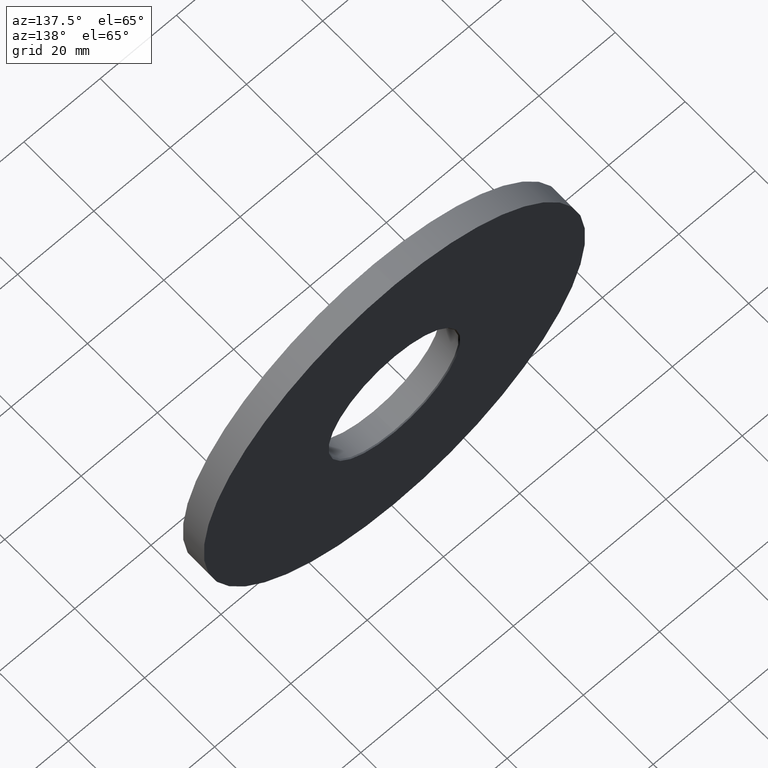
[diagram: clean part render]
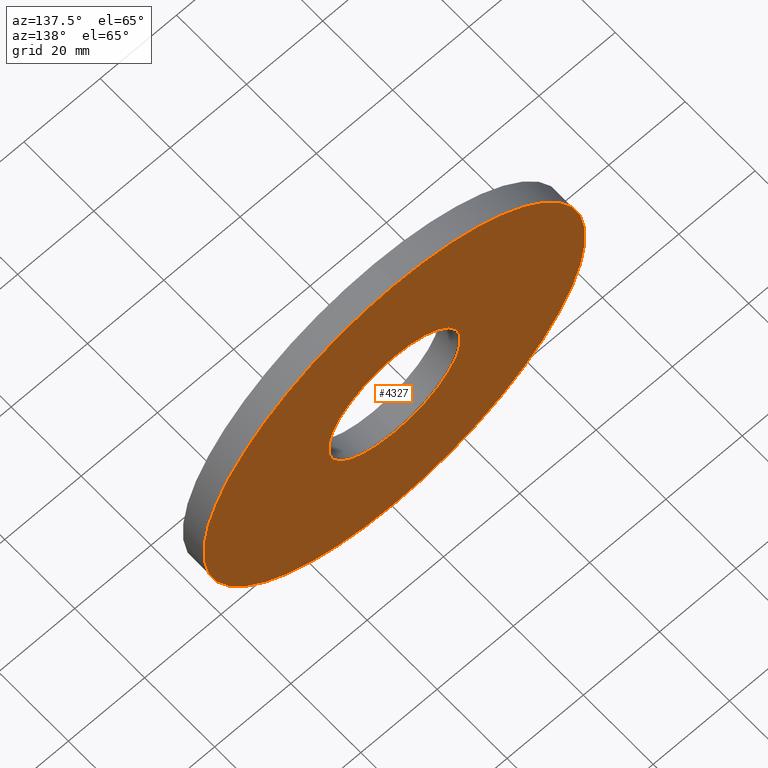
[diagram: same view with one face highlighted and labeled with its STEP entity id]
A machine part, auxiliary view. The second image highlights one B-rep face of the part: STEP entity #4327.
In plain terms, the highlighted planar face has unit normal (0, 1, 0).
Its self-contained STEP definition (entity closure, byte-faithful):
#169 = VERTEX_POINT ( 'NONE', #7737 ) ;
#389 = VERTEX_POINT ( 'NONE', #13252 ) ;
#1019 = CARTESIAN_POINT ( 'NONE',  ( 0.000000000000000000, 6.000000000000000000, 0.000000000000000000 ) ) ;
#1127 = DIRECTION ( 'NONE',  ( 0.000000000000000000, 0.000000000000000000, 1.000000000000000000 ) ) ;
#2155 = EDGE_LOOP ( 'NONE', ( #13527, #14701 ) ) ;
#2964 = CARTESIAN_POINT ( 'NONE',  ( 0.000000000000000000, 6.000000000000000000, 0.000000000000000000 ) ) ;
#4327 = ADVANCED_FACE ( 'NONE', ( #9844, #12826 ), #8779, .T. ) ;
#4480 = EDGE_LOOP ( 'NONE', ( #6947, #9725 ) ) ;
#4894 = DIRECTION ( 'NONE',  ( 0.000000000000000000, 1.000000000000000000, 0.000000000000000000 ) ) ;
#5221 = EDGE_CURVE ( 'NONE', #169, #12346, #12624, .T. ) ;
#5321 = AXIS2_PLACEMENT_3D ( 'NONE', #12551, #15079, #1127 ) ;
#5554 = AXIS2_PLACEMENT_3D ( 'NONE', #1019, #4894, #15083 ) ;
#5628 = DIRECTION ( 'NONE',  ( 0.000000000000000000, 0.000000000000000000, 1.000000000000000000 ) ) ;
#5872 = AXIS2_PLACEMENT_3D ( 'NONE', #2964, #6919, #9232 ) ;
#5906 = CARTESIAN_POINT ( 'NONE',  ( 0.000000000000000000, 6.000000000000000000, -50.00000000000000000 ) ) ;
#6775 = CIRCLE ( 'NONE', #5554, 50.00000000000000000 ) ;
#6868 = DIRECTION ( 'NONE',  ( -0.000000000000000000, -1.000000000000000000, -0.000000000000000000 ) ) ;
#6919 = DIRECTION ( 'NONE',  ( -0.000000000000000000, -1.000000000000000000, -0.000000000000000000 ) ) ;
#6947 = ORIENTED_EDGE ( 'NONE', *, *, #12232, .T. ) ;
#7612 = CARTESIAN_POINT ( 'NONE',  ( 0.000000000000000000, 6.000000000000000000, 0.000000000000000000 ) ) ;
#7737 = CARTESIAN_POINT ( 'NONE',  ( 0.000000000000000000, 6.000000000000000000, 17.30000000000001137 ) ) ;
#8193 = VERTEX_POINT ( 'NONE', #5906 ) ;
#8779 = PLANE ( 'NONE',  #9059 ) ;
#8880 = DIRECTION ( 'NONE',  ( 0.000000000000000000, -0.000000000000000000, 1.000000000000000000 ) ) ;
#9059 = AXIS2_PLACEMENT_3D ( 'NONE', #7612, #12852, #8880 ) ;
#9232 = DIRECTION ( 'NONE',  ( 0.000000000000000000, 0.000000000000000000, 1.000000000000000000 ) ) ;
#9725 = ORIENTED_EDGE ( 'NONE', *, *, #11276, .T. ) ;
#9820 = CARTESIAN_POINT ( 'NONE',  ( 2.118638962524922717E-15, 6.000000000000000000, -17.30000000000001137 ) ) ;
#9844 = FACE_BOUND ( 'NONE', #2155, .T. ) ;
#10261 = EDGE_CURVE ( 'NONE', #12346, #169, #15299, .T. ) ;
#11276 = EDGE_CURVE ( 'NONE', #389, #8193, #6775, .T. ) ;
#11304 = AXIS2_PLACEMENT_3D ( 'NONE', #13134, #6868, #5628 ) ;
#12232 = EDGE_CURVE ( 'NONE', #8193, #389, #13892, .T. ) ;
#12346 = VERTEX_POINT ( 'NONE', #9820 ) ;
#12551 = CARTESIAN_POINT ( 'NONE',  ( 0.000000000000000000, 6.000000000000000000, 0.000000000000000000 ) ) ;
#12624 = CIRCLE ( 'NONE', #5872, 17.30000000000001137 ) ;
#12826 = FACE_OUTER_BOUND ( 'NONE', #4480, .T. ) ;
#12852 = DIRECTION ( 'NONE',  ( 0.000000000000000000, 1.000000000000000000, 0.000000000000000000 ) ) ;
#13134 = CARTESIAN_POINT ( 'NONE',  ( 0.000000000000000000, 6.000000000000000000, 0.000000000000000000 ) ) ;
#13252 = CARTESIAN_POINT ( 'NONE',  ( 6.123233995736766085E-15, 6.000000000000000000, 50.00000000000000000 ) ) ;
#13527 = ORIENTED_EDGE ( 'NONE', *, *, #5221, .T. ) ;
#13892 = CIRCLE ( 'NONE', #5321, 50.00000000000000000 ) ;
#14701 = ORIENTED_EDGE ( 'NONE', *, *, #10261, .T. ) ;
#15079 = DIRECTION ( 'NONE',  ( 0.000000000000000000, 1.000000000000000000, 0.000000000000000000 ) ) ;
#15083 = DIRECTION ( 'NONE',  ( 0.000000000000000000, 0.000000000000000000, 1.000000000000000000 ) ) ;
#15299 = CIRCLE ( 'NONE', #11304, 17.30000000000001137 ) ;